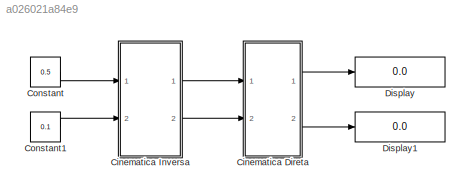
MODEL slx_a026021a84e9
KIND model
CONFIG AbsTol = auto
CONFIG EnableMultiTasking = off
CONFIG FixedStep = auto
CONFIG MaxStep = auto
CONFIG MinStep = auto
CONFIG RelTol = 1e-3
CONFIG SampleTimeConstraint = Unconstrained
CONFIG Solver = VariableStepAuto
CONFIG SolverName = VariableStepAuto
CONFIG StartTime = 0.0
CONFIG StopTime = 5
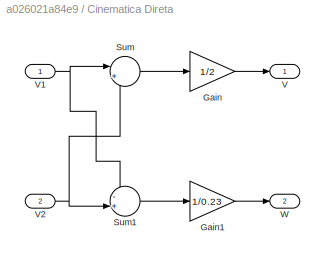
BLOCK [SubSystem] Cinematica Direta
  Ports = [2, 2]
  RequestExecContextInheritance = off
  Variant = off
BLOCK [Gain] Cinematica Direta/Gain
  Gain = 1/2
  OutDataTypeStr = Inherit: Inherit via internal rule
  ParamDataTypeStr = Inherit: Inherit via internal rule
  SaturateOnIntegerOverflow = off
BLOCK [Gain] Cinematica Direta/Gain1
  Gain = 1/0.23
  OutDataTypeStr = Inherit: Inherit via internal rule
  ParamDataTypeStr = Inherit: Inherit via internal rule
  SaturateOnIntegerOverflow = off
BLOCK [Sum] Cinematica Direta/Sum
  IconShape = round
  InputSameDT = off
  Inputs = |++
  OutDataTypeStr = Inherit: Inherit via internal rule
  Ports = [2, 1]
  SaturateOnIntegerOverflow = off
BLOCK [Sum] Cinematica Direta/Sum1
  IconShape = round
  InputSameDT = off
  Inputs = -+|
  OutDataTypeStr = Inherit: Inherit via internal rule
  Ports = [2, 1]
  SaturateOnIntegerOverflow = off
BLOCK [Outport] Cinematica Direta/V
  IconDisplay = Port number
BLOCK [Inport] Cinematica Direta/V1
  IconDisplay = Port number
BLOCK [Inport] Cinematica Direta/V2
  IconDisplay = Port number
  Port = 2
BLOCK [Outport] Cinematica Direta/W
  IconDisplay = Port number
  Port = 2
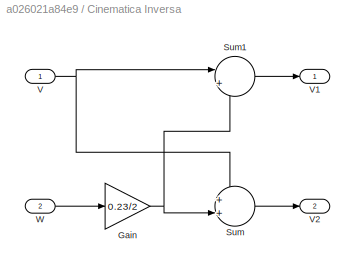
BLOCK [SubSystem] Cinematica Inversa
  Ports = [2, 2]
  RequestExecContextInheritance = off
  Variant = off
BLOCK [Gain] Cinematica Inversa/Gain
  Gain = 0.23/2
  OutDataTypeStr = Inherit: Inherit via internal rule
  ParamDataTypeStr = Inherit: Inherit via internal rule
  SaturateOnIntegerOverflow = off
BLOCK [Sum] Cinematica Inversa/Sum
  IconShape = round
  InputSameDT = off
  Inputs = ++|
  OutDataTypeStr = Inherit: Inherit via internal rule
  Ports = [2, 1]
  SaturateOnIntegerOverflow = off
BLOCK [Sum] Cinematica Inversa/Sum1
  IconShape = round
  InputSameDT = off
  Inputs = |+-
  OutDataTypeStr = Inherit: Inherit via internal rule
  Ports = [2, 1]
  SaturateOnIntegerOverflow = off
BLOCK [Inport] Cinematica Inversa/V
  IconDisplay = Port number
BLOCK [Outport] Cinematica Inversa/V1
  IconDisplay = Port number
BLOCK [Outport] Cinematica Inversa/V2
  IconDisplay = Port number
  Port = 2
BLOCK [Inport] Cinematica Inversa/W
  IconDisplay = Port number
  Port = 2
BLOCK [Constant] Constant
  Value = 0.5
BLOCK [Constant] Constant1
  Value = 0.1
BLOCK [Display] Display
  Decimation = 1
  Ports = [1]
BLOCK [Display] Display1
  Decimation = 1
  Ports = [1]
LINE Cinematica Direta/Gain1:1 -> Cinematica Direta/W:1
LINE Cinematica Direta/Gain:1 -> Cinematica Direta/V:1
LINE Cinematica Direta/Sum1:1 -> Cinematica Direta/Gain1:1
LINE Cinematica Direta/Sum:1 -> Cinematica Direta/Gain:1
NET Cinematica Direta/V1:1 -> Cinematica Direta/Sum1:1, Cinematica Direta/Sum:1
NET Cinematica Direta/V2:1 -> Cinematica Direta/Sum1:2, Cinematica Direta/Sum:2
LINE Cinematica Direta:1 -> Display:1
LINE Cinematica Direta:2 -> Display1:1
NET Cinematica Inversa/Gain:1 -> Cinematica Inversa/Sum1:2, Cinematica Inversa/Sum:2
LINE Cinematica Inversa/Sum1:1 -> Cinematica Inversa/V1:1
LINE Cinematica Inversa/Sum:1 -> Cinematica Inversa/V2:1
NET Cinematica Inversa/V:1 -> Cinematica Inversa/Sum1:1, Cinematica Inversa/Sum:1
LINE Cinematica Inversa/W:1 -> Cinematica Inversa/Gain:1
LINE Cinematica Inversa:1 -> Cinematica Direta:1
LINE Cinematica Inversa:2 -> Cinematica Direta:2
LINE Constant1:1 -> Cinematica Inversa:2
LINE Constant:1 -> Cinematica Inversa:1
note: NET lines group one-source signal fan-out (src -> all destinations, sorted); 1:1 wires keep LINE
